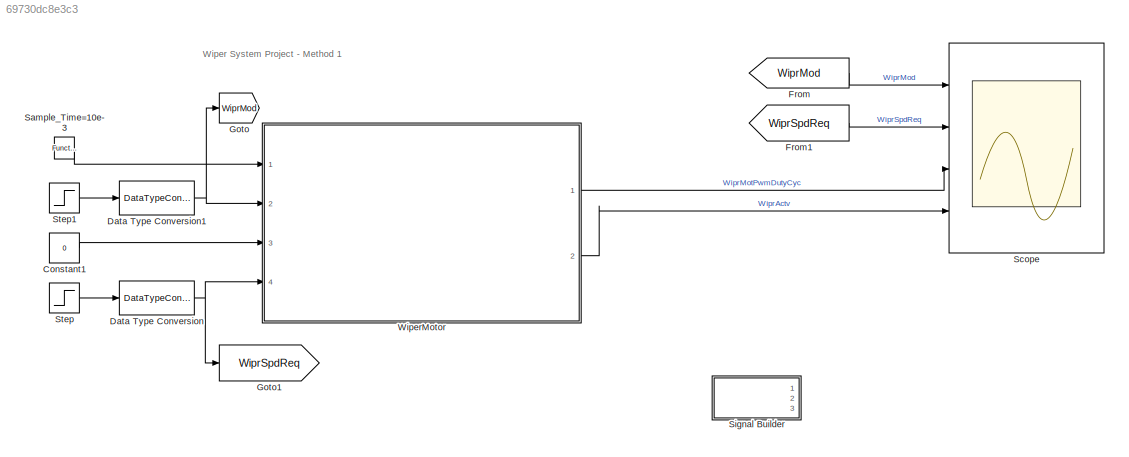
MODEL slx_69730dc8e3c3
KIND model
CONFIG AbsTol = auto
CONFIG EnableMultiTasking = off
CONFIG FixedStep = 0.01
CONFIG MaxStep = auto
CONFIG MinStep = auto
CONFIG RelTol = 1e-3
CONFIG SampleTimeConstraint = Unconstrained
CONFIG SolverName = FixedStepDiscrete
CONFIG StartTime = 0.0
CONFIG StopTime = 10.0
BLOCK [Constant] Constant1
  OutDataTypeStr = boolean
  Value = 0
BLOCK [DataTypeConversion] Data Type Conversion
  RndMeth = Floor
  SaturateOnIntegerOverflow = off
BLOCK [DataTypeConversion] Data Type Conversion1
  RndMeth = Floor
  SaturateOnIntegerOverflow = off
BLOCK [From] From
  GotoTag = WiprMod
BLOCK [From] From1
  GotoTag = WiprSpdReq
BLOCK [Goto] Goto
  GotoTag = WiprMod
BLOCK [Goto] Goto1
  GotoTag = WiprSpdReq
BLOCK [Reference] Sample_Time=10e-3  REF=simulink/Ports &
Subsystems/Function-Call
Generator
  Ports = [0, 1]
  SourceBlock = simulink/Ports &\nSubsystems/Function-Call\nGenerator
  SourceProductBaseCode = SL
  SourceType = Function-Call Generator
BLOCK [Scope] Scope
  Floating = off
  NumInputPorts = 4
  Ports = [4]
  ScopeSpecificationString = Simulink.scopes.TimeScopeBlockCfg('CurrentConfiguration', extmgr.ConfigurationSet(extmgr.Configuration('Core','General UI',true),extmgr.Configuration('Core','Source UI',true),extmgr.Configuration('Sources','WiredSimulink',true),extmgr.Configuration('Visuals','Time Domain',true,'SerializedDisplays',{struct('MinYLimReal','-0.125','MaxYLimReal','1.125','YLabelReal','','MinYLimMag','0.00000','MaxYLimM...<+3420ch>
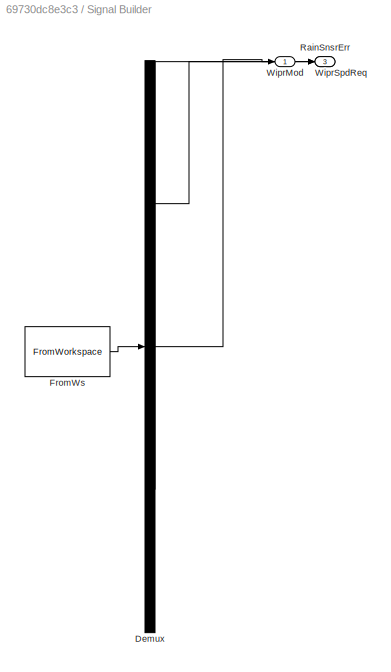
BLOCK [SubSystem] Signal Builder
  ClipboardFcn = sigbuilder_block('clipboard');
  CloseFcn = sigbuilder_block('close');
  ContinueFcn = sigbuilder_block('continue');
  CopyFcn = sigbuilder_block('copy');
  DeleteFcn = sigbuilder_block('delete');
  LoadFcn = sigbuilder_block('load');
  MaskHideContents = on
  ModelCloseFcn = sigbuilder_block('modelClose');
  NameChangeFcn = sigbuilder_block('namechange');
  OpenFcn = sigbuilder_block('open',[404 117.5 550.5 362.5 ]);
  PauseFcn = sigbuilder_block('pause');
  Ports = [0, 3]
  PreSaveFcn = sigbuilder_block('preSave');
  RequestExecContextInheritance = off
  StartFcn = sigbuilder_block('start');
  StopFcn = sigbuilder_block('stop');
  Tag = STV Subsys
BLOCK [Demux] Signal Builder/Demux
  DisplayOption = none
  Outputs = 3
  Ports = [1, 3]
  Tag = STV Demux
BLOCK [FromWorkspace] Signal Builder/FromWs
  OutputAfterFinalValue = Holding final value
  SampleTime = 1
  Tag = STV FromWs
  VariableName = tuvar
BLOCK [Outport] Signal Builder/RainSnsrErr
  Port = 2
  Tag = STV Outport
BLOCK [Outport] Signal Builder/WiprMod
  Tag = STV Outport
BLOCK [Outport] Signal Builder/WiprSpdReq
  Port = 3
  Tag = STV Outport
BLOCK [Step] Step
  After = 6
  Before = 3
  OutDataTypeStr = single
  Time = 3
BLOCK [Step] Step1
  OutDataTypeStr = Inherit: Inherit via back propagation
  Time = 2
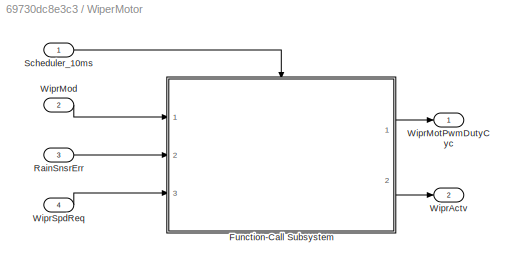
BLOCK [SubSystem] WiperMotor
  Ports = [4, 2]
  RequestExecContextInheritance = off
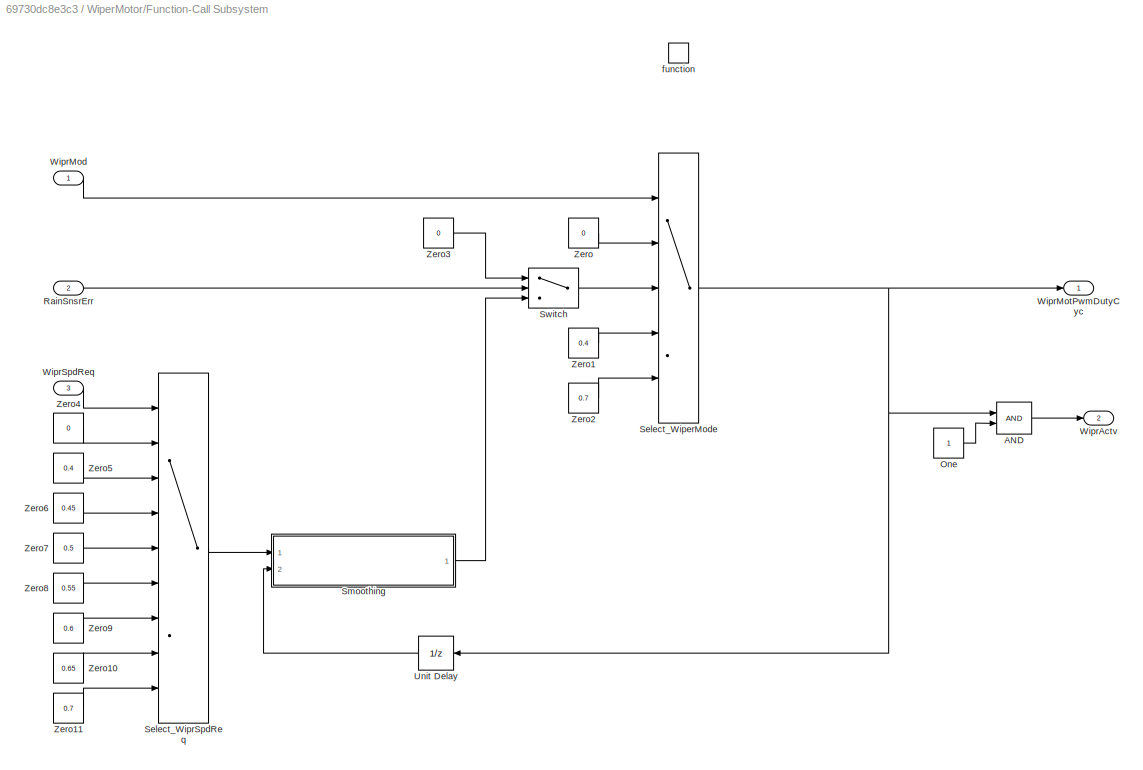
BLOCK [SubSystem] WiperMotor/Function-Call Subsystem
  Ports = [3, 2, 0, 1]
  RequestExecContextInheritance = off
  TreatAsAtomicUnit = on
BLOCK [Logic] WiperMotor/Function-Call Subsystem/AND
  AllPortsSameDT = off
  IconShape = distinctive
  OutDataTypeStr = boolean
  Ports = [2, 1]
BLOCK [Constant] WiperMotor/Function-Call Subsystem/One
  OutDataTypeStr = Inherit: Inherit via back propagation
BLOCK [Inport] WiperMotor/Function-Call Subsystem/RainSnsrErr
  Port = 2
BLOCK [MultiPortSwitch] WiperMotor/Function-Call Subsystem/Select_WiperMode
  DataPortOrder = Zero-based contiguous
  InputSameDT = off
  Inputs = 4
  OutDataTypeStr = single
  Ports = [5, 1]
  SaturateOnIntegerOverflow = off
  zeroidx = on
BLOCK [MultiPortSwitch] WiperMotor/Function-Call Subsystem/Select_WiprSpdReq
  DataPortOrder = Zero-based contiguous
  InputSameDT = off
  Inputs = 8
  Ports = [9, 1]
  SaturateOnIntegerOverflow = off
  zeroidx = on
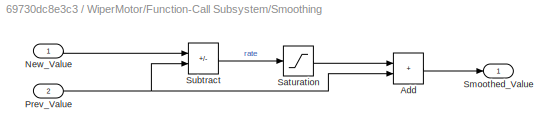
BLOCK [SubSystem] WiperMotor/Function-Call Subsystem/Smoothing
  Ports = [2, 1]
  RequestExecContextInheritance = off
BLOCK [Sum] WiperMotor/Function-Call Subsystem/Smoothing/Add
  IconShape = rectangular
  Ports = [2, 1]
BLOCK [Inport] WiperMotor/Function-Call Subsystem/Smoothing/New_Value
BLOCK [Inport] WiperMotor/Function-Call Subsystem/Smoothing/Prev_Value
  Port = 2
BLOCK [Saturate] WiperMotor/Function-Call Subsystem/Smoothing/Saturation
  LowerLimit = -0.005
  UpperLimit = 0.005
BLOCK [Outport] WiperMotor/Function-Call Subsystem/Smoothing/Smoothed_Value
BLOCK [Sum] WiperMotor/Function-Call Subsystem/Smoothing/Subtract
  IconShape = rectangular
  Inputs = +-
  Ports = [2, 1]
BLOCK [Switch] WiperMotor/Function-Call Subsystem/Switch
  Criteria = u2 > Threshold
  InputSameDT = off
  OutDataTypeStr = single
  SaturateOnIntegerOverflow = off
BLOCK [UnitDelay] WiperMotor/Function-Call Subsystem/Unit Delay
  HasFrameUpgradeWarning = on
  NameLocation = top
  SampleTime = -1
BLOCK [Outport] WiperMotor/Function-Call Subsystem/WiprActv
  Port = 2
BLOCK [Inport] WiperMotor/Function-Call Subsystem/WiprMod
BLOCK [Outport] WiperMotor/Function-Call Subsystem/WiprMotPwmDutyCyc
BLOCK [Inport] WiperMotor/Function-Call Subsystem/WiprSpdReq
  Port = 3
BLOCK [Constant] WiperMotor/Function-Call Subsystem/Zero
  OutDataTypeStr = Inherit: Inherit via back propagation
  Value = 0
BLOCK [Constant] WiperMotor/Function-Call Subsystem/Zero1
  OutDataTypeStr = Inherit: Inherit via back propagation
  Value = 0.4
BLOCK [Constant] WiperMotor/Function-Call Subsystem/Zero10
  OutDataTypeStr = Inherit: Inherit via back propagation
  Value = 0.65
BLOCK [Constant] WiperMotor/Function-Call Subsystem/Zero11
  OutDataTypeStr = Inherit: Inherit via back propagation
  Value = 0.7
BLOCK [Constant] WiperMotor/Function-Call Subsystem/Zero2
  OutDataTypeStr = Inherit: Inherit via back propagation
  Value = 0.7
BLOCK [Constant] WiperMotor/Function-Call Subsystem/Zero3
  OutDataTypeStr = Inherit: Inherit via back propagation
  Value = 0
BLOCK [Constant] WiperMotor/Function-Call Subsystem/Zero4
  OutDataTypeStr = Inherit: Inherit via back propagation
  Value = 0
BLOCK [Constant] WiperMotor/Function-Call Subsystem/Zero5
  OutDataTypeStr = Inherit: Inherit via back propagation
  Value = 0.4
BLOCK [Constant] WiperMotor/Function-Call Subsystem/Zero6
  OutDataTypeStr = Inherit: Inherit via back propagation
  Value = 0.45
BLOCK [Constant] WiperMotor/Function-Call Subsystem/Zero7
  OutDataTypeStr = Inherit: Inherit via back propagation
  Value = 0.5
BLOCK [Constant] WiperMotor/Function-Call Subsystem/Zero8
  OutDataTypeStr = Inherit: Inherit via back propagation
  Value = 0.55
BLOCK [Constant] WiperMotor/Function-Call Subsystem/Zero9
  OutDataTypeStr = Inherit: Inherit via back propagation
  Value = 0.6
BLOCK [TriggerPort] WiperMotor/Function-Call Subsystem/function
  Ports = []
  StatesWhenEnabling = held
  TriggerType = function-call
  VariantControl = (inherit)
BLOCK [Inport] WiperMotor/RainSnsrErr
  OutDataTypeStr = boolean
  OutMax = 1
  OutMin = 0
  Port = 3
BLOCK [Inport] WiperMotor/Scheduler_10ms
BLOCK [Outport] WiperMotor/WiprActv
  OutDataTypeStr = boolean
  Port = 2
BLOCK [Inport] WiperMotor/WiprMod
  OutDataTypeStr = uint8
  OutMax = 3
  OutMin = 0
  Port = 2
BLOCK [Outport] WiperMotor/WiprMotPwmDutyCyc
  LockScale = on
  OutDataTypeStr = single
  OutMax = 1
  OutMin = 0
BLOCK [Inport] WiperMotor/WiprSpdReq
  OutDataTypeStr = uint8
  OutMax = 7
  OutMin = 0
  Port = 4
ANNOTATION (root): Wiper System Project - Method 1
LINE Constant1:1 -> WiperMotor:3
NET Data Type Conversion1:1 -> Goto:1, WiperMotor:2
NET Data Type Conversion:1 -> Goto1:1, WiperMotor:4
LINE From1:1 -> Scope:2
LINE From:1 -> Scope:1
LINE Sample_Time=10e-3:1 -> WiperMotor:1
LINE Step1:1 -> Data Type Conversion1:1
LINE Step:1 -> Data Type Conversion:1
LINE WiperMotor/Function-Call Subsystem/AND:1 -> WiperMotor/Function-Call Subsystem/WiprActv:1
LINE WiperMotor/Function-Call Subsystem/One:1 -> WiperMotor/Function-Call Subsystem/AND:2
LINE WiperMotor/Function-Call Subsystem/RainSnsrErr:1 -> WiperMotor/Function-Call Subsystem/Switch:2
NET WiperMotor/Function-Call Subsystem/Select_WiperMode:1 -> WiperMotor/Function-Call Subsystem/AND:1, WiperMotor/Function-Call Subsystem/Unit Delay:1, WiperMotor/Function-Call Subsystem/WiprMotPwmDutyCyc:1
LINE WiperMotor/Function-Call Subsystem/Select_WiprSpdReq:1 -> WiperMotor/Function-Call Subsystem/Smoothing:1
LINE WiperMotor/Function-Call Subsystem/Smoothing/Add:1 -> WiperMotor/Function-Call Subsystem/Smoothing/Smoothed_Value:1
LINE WiperMotor/Function-Call Subsystem/Smoothing/New_Value:1 -> WiperMotor/Function-Call Subsystem/Smoothing/Subtract:1
NET WiperMotor/Function-Call Subsystem/Smoothing/Prev_Value:1 -> WiperMotor/Function-Call Subsystem/Smoothing/Add:2, WiperMotor/Function-Call Subsystem/Smoothing/Subtract:2
LINE WiperMotor/Function-Call Subsystem/Smoothing/Saturation:1 -> WiperMotor/Function-Call Subsystem/Smoothing/Add:1
LINE WiperMotor/Function-Call Subsystem/Smoothing/Subtract:1 -> WiperMotor/Function-Call Subsystem/Smoothing/Saturation:1
LINE WiperMotor/Function-Call Subsystem/Smoothing:1 -> WiperMotor/Function-Call Subsystem/Switch:3
LINE WiperMotor/Function-Call Subsystem/Switch:1 -> WiperMotor/Function-Call Subsystem/Select_WiperMode:3
LINE WiperMotor/Function-Call Subsystem/Unit Delay:1 -> WiperMotor/Function-Call Subsystem/Smoothing:2
LINE WiperMotor/Function-Call Subsystem/WiprMod:1 -> WiperMotor/Function-Call Subsystem/Select_WiperMode:1
LINE WiperMotor/Function-Call Subsystem/WiprSpdReq:1 -> WiperMotor/Function-Call Subsystem/Select_WiprSpdReq:1
LINE WiperMotor/Function-Call Subsystem/Zero10:1 -> WiperMotor/Function-Call Subsystem/Select_WiprSpdReq:8
LINE WiperMotor/Function-Call Subsystem/Zero11:1 -> WiperMotor/Function-Call Subsystem/Select_WiprSpdReq:9
LINE WiperMotor/Function-Call Subsystem/Zero1:1 -> WiperMotor/Function-Call Subsystem/Select_WiperMode:4
LINE WiperMotor/Function-Call Subsystem/Zero2:1 -> WiperMotor/Function-Call Subsystem/Select_WiperMode:5
LINE WiperMotor/Function-Call Subsystem/Zero3:1 -> WiperMotor/Function-Call Subsystem/Switch:1
LINE WiperMotor/Function-Call Subsystem/Zero4:1 -> WiperMotor/Function-Call Subsystem/Select_WiprSpdReq:2
LINE WiperMotor/Function-Call Subsystem/Zero5:1 -> WiperMotor/Function-Call Subsystem/Select_WiprSpdReq:3
LINE WiperMotor/Function-Call Subsystem/Zero6:1 -> WiperMotor/Function-Call Subsystem/Select_WiprSpdReq:4
LINE WiperMotor/Function-Call Subsystem/Zero7:1 -> WiperMotor/Function-Call Subsystem/Select_WiprSpdReq:5
LINE WiperMotor/Function-Call Subsystem/Zero8:1 -> WiperMotor/Function-Call Subsystem/Select_WiprSpdReq:6
LINE WiperMotor/Function-Call Subsystem/Zero9:1 -> WiperMotor/Function-Call Subsystem/Select_WiprSpdReq:7
LINE WiperMotor/Function-Call Subsystem/Zero:1 -> WiperMotor/Function-Call Subsystem/Select_WiperMode:2
LINE WiperMotor/Function-Call Subsystem:1 -> WiperMotor/WiprMotPwmDutyCyc:1
LINE WiperMotor/Function-Call Subsystem:2 -> WiperMotor/WiprActv:1
LINE WiperMotor/RainSnsrErr:1 -> WiperMotor/Function-Call Subsystem:2
LINE WiperMotor/Scheduler_10ms:1 -> WiperMotor/Function-Call Subsystem:trigger
LINE WiperMotor/WiprMod:1 -> WiperMotor/Function-Call Subsystem:1
LINE WiperMotor/WiprSpdReq:1 -> WiperMotor/Function-Call Subsystem:3
LINE WiperMotor:1 -> Scope:3
LINE WiperMotor:2 -> Scope:4
note: NET lines group one-source signal fan-out (src -> all destinations, sorted); 1:1 wires keep LINE
